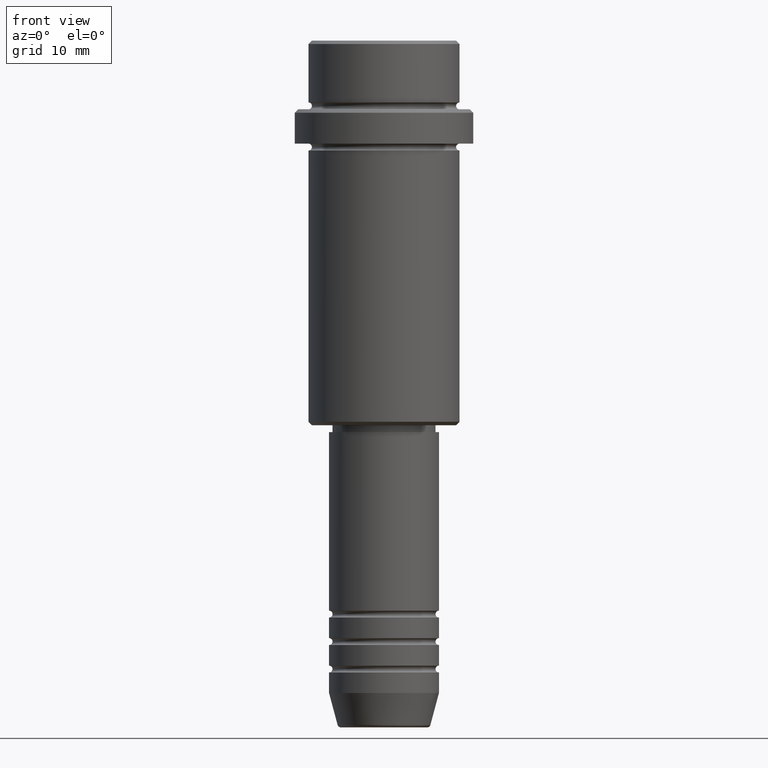
[diagram: clean part render]
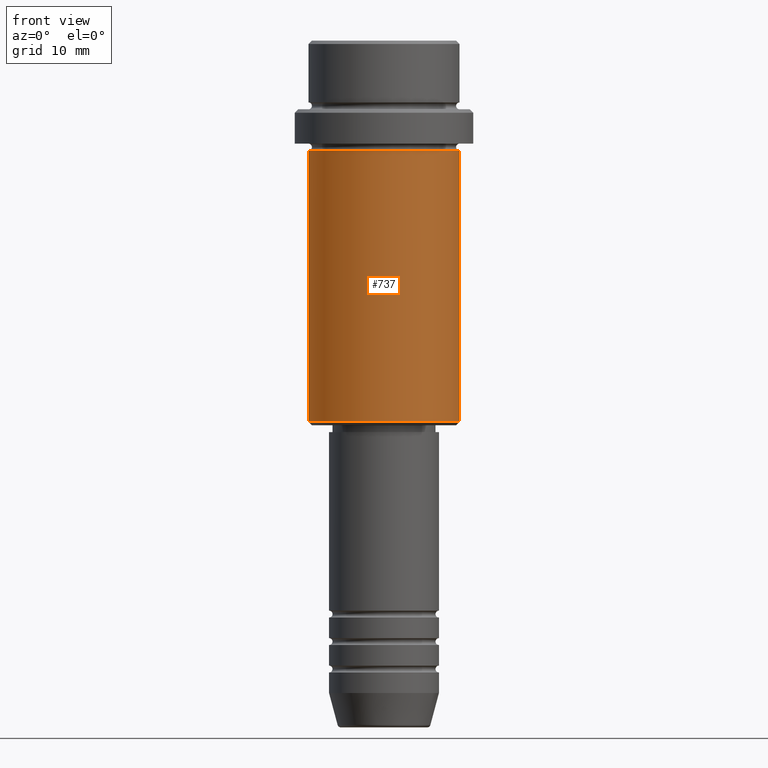
[diagram: same view with one face highlighted and labeled with its STEP entity id]
A machine part, front view. The second image highlights one B-rep face of the part: STEP entity #737.
In plain terms, the highlighted cylindrical surface (partial cylindrical patch) has radius 11 mm, axis along (-0, -0, 1).
Its self-contained STEP definition (entity closure, byte-faithful):
#78 = LINE ( 'NONE', #289, #1360 ) ;
#152 = CARTESIAN_POINT ( 'NONE',  ( -10.99999999999998757, 1.347111479062086827E-15, -55.50000000000005684 ) ) ;
#226 = AXIS2_PLACEMENT_3D ( 'NONE', #316, #629, #1398 ) ;
#289 = CARTESIAN_POINT ( 'NONE',  ( 10.99999999999998757, 0.000000000000000000, 0.000000000000000000 ) ) ;
#295 = LINE ( 'NONE', #722, #1297 ) ;
#306 = VERTEX_POINT ( 'NONE', #152 ) ;
#316 = CARTESIAN_POINT ( 'NONE',  ( 0.000000000000000000, 0.000000000000000000, 0.000000000000000000 ) ) ;
#324 = ORIENTED_EDGE ( 'NONE', *, *, #1321, .F. ) ;
#341 = CYLINDRICAL_SURFACE ( 'NONE', #226, 10.99999999999998757 ) ;
#411 = EDGE_LOOP ( 'NONE', ( #324, #853, #1094, #906 ) ) ;
#468 = CIRCLE ( 'NONE', #1227, 10.99999999999998757 ) ;
#527 = DIRECTION ( 'NONE',  ( -1.000000000000000000, 0.000000000000000000, 0.000000000000000000 ) ) ;
#530 = CARTESIAN_POINT ( 'NONE',  ( 10.99999999999997158, 0.000000000000000000, -16.00000000000000355 ) ) ;
#629 = DIRECTION ( 'NONE',  ( -0.000000000000000000, -0.000000000000000000, 1.000000000000000000 ) ) ;
#633 = DIRECTION ( 'NONE',  ( -0.000000000000000000, -0.000000000000000000, 1.000000000000000000 ) ) ;
#704 = DIRECTION ( 'NONE',  ( -0.000000000000000000, -0.000000000000000000, 1.000000000000000000 ) ) ;
#714 = DIRECTION ( 'NONE',  ( -0.000000000000000000, -0.000000000000000000, 1.000000000000000000 ) ) ;
#722 = CARTESIAN_POINT ( 'NONE',  ( -10.99999999999998757, 1.347111479062086827E-15, 0.000000000000000000 ) ) ;
#737 = ADVANCED_FACE ( 'NONE', ( #1405 ), #341, .T. ) ;
#788 = CIRCLE ( 'NONE', #929, 10.99999999999997158 ) ;
#828 = VERTEX_POINT ( 'NONE', #530 ) ;
#835 = DIRECTION ( 'NONE',  ( 1.000000000000000000, 0.000000000000000000, 0.000000000000000000 ) ) ;
#853 = ORIENTED_EDGE ( 'NONE', *, *, #1079, .T. ) ;
#906 = ORIENTED_EDGE ( 'NONE', *, *, #1395, .F. ) ;
#929 = AXIS2_PLACEMENT_3D ( 'NONE', #935, #1267, #835 ) ;
#935 = CARTESIAN_POINT ( 'NONE',  ( 0.000000000000000000, 0.000000000000000000, -16.00000000000000355 ) ) ;
#972 = EDGE_CURVE ( 'NONE', #983, #828, #78, .T. ) ;
#983 = VERTEX_POINT ( 'NONE', #1278 ) ;
#1079 = EDGE_CURVE ( 'NONE', #306, #983, #468, .T. ) ;
#1085 = VERTEX_POINT ( 'NONE', #1205 ) ;
#1094 = ORIENTED_EDGE ( 'NONE', *, *, #972, .T. ) ;
#1205 = CARTESIAN_POINT ( 'NONE',  ( -10.99999999999997158, 1.347111479062085841E-15, -16.00000000000000355 ) ) ;
#1227 = AXIS2_PLACEMENT_3D ( 'NONE', #1401, #633, #527 ) ;
#1267 = DIRECTION ( 'NONE',  ( -0.000000000000000000, -0.000000000000000000, 1.000000000000000000 ) ) ;
#1278 = CARTESIAN_POINT ( 'NONE',  ( 10.99999999999998757, 0.000000000000000000, -55.50000000000005684 ) ) ;
#1297 = VECTOR ( 'NONE', #704, 1000.000000000000000 ) ;
#1321 = EDGE_CURVE ( 'NONE', #306, #1085, #295, .T. ) ;
#1360 = VECTOR ( 'NONE', #714, 1000.000000000000000 ) ;
#1395 = EDGE_CURVE ( 'NONE', #1085, #828, #788, .T. ) ;
#1398 = DIRECTION ( 'NONE',  ( 1.000000000000000000, 0.000000000000000000, 0.000000000000000000 ) ) ;
#1401 = CARTESIAN_POINT ( 'NONE',  ( 0.000000000000000000, 0.000000000000000000, -55.50000000000005684 ) ) ;
#1405 = FACE_OUTER_BOUND ( 'NONE', #411, .T. ) ;